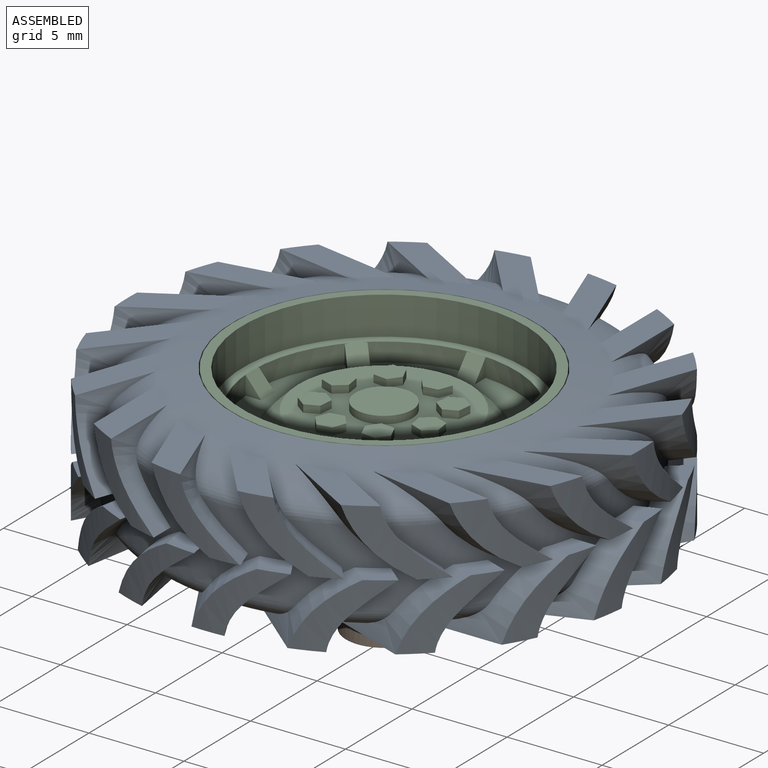
[diagram: assembled view]
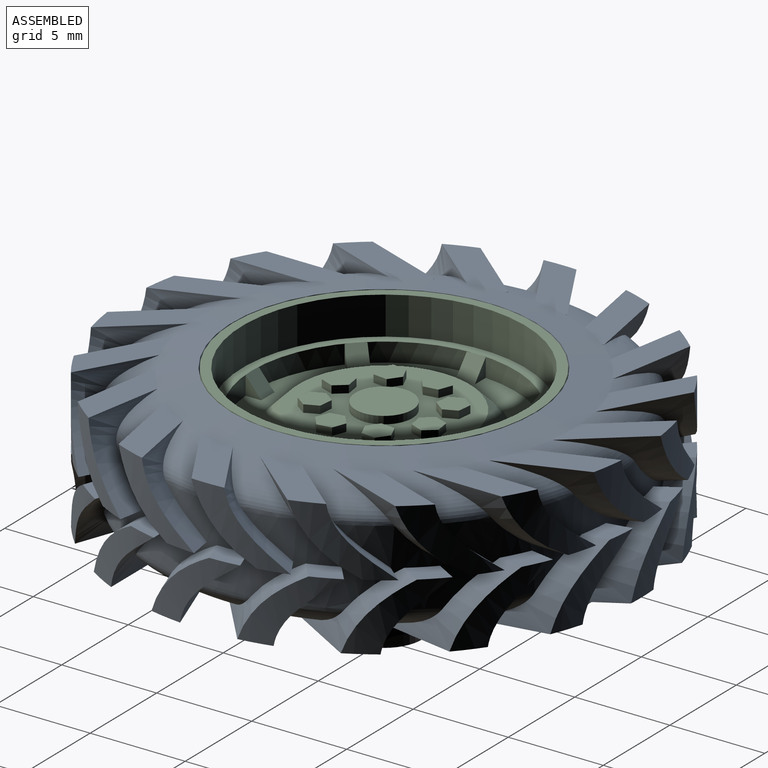
[diagram: assembled view, second angle]
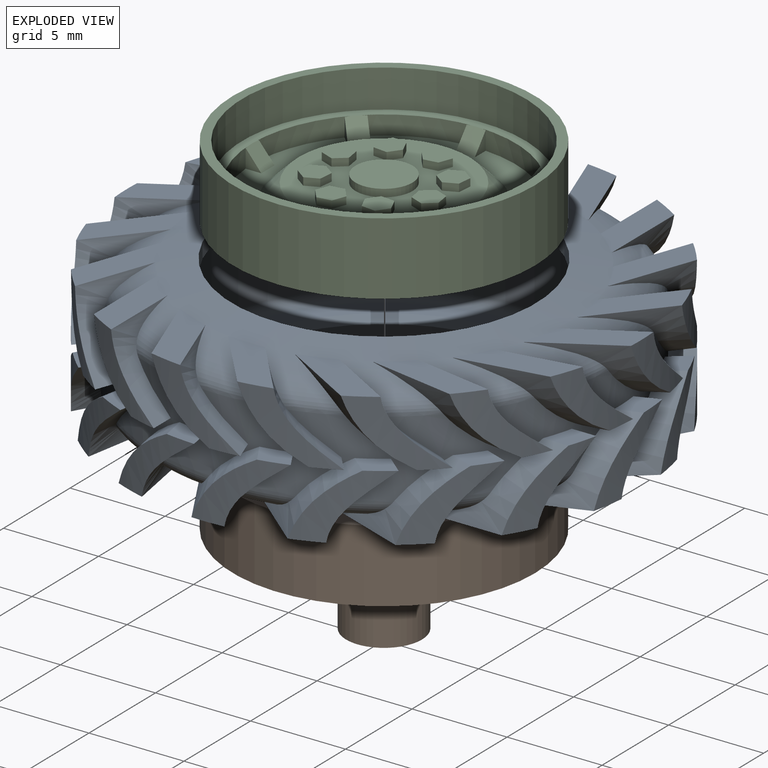
[diagram: exploded view]
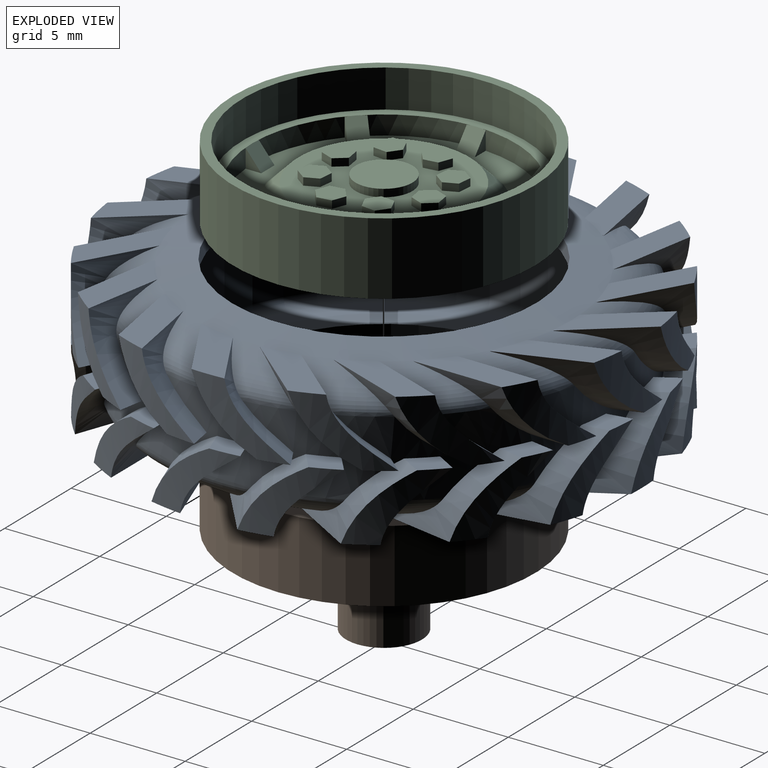
[diagram: exploded view, second angle]
ASSEMBLY  parts=3 mates=3
PART A: 229 faces, bbox 7.7x29.5x29.5 mm
  f0: revolved ~17.43x17.43mm, area 40.3mm2, adj f6,f224
  f1: plane 2.3x1.7mm, normal (1,0,0), area 2mm2, adj f3,f8,f9,f10
  f2: revolved ~24.41x24.41mm, area 221.4mm2, adj f3,f5,f6,f7,f8,f9,f12,f13
  f3: cylinder r=12.25mm len=24.5mm, axis (1,0,0), area 181.6mm2, adj f1,f2,f4,f8,f9,f11,f14,f15
  f4: cylinder r=12.25mm len=0.8mm, axis (1,0,0), area 0.3mm2, adj f3,f25,f191
  f5: plane 5.16x3.32mm, normal (-1,0,0), area 6.7mm2, adj f2,f7,f8,f9,f10
  f6: cylinder r=8mm len=16mm, axis (1,0,0), area 40.2mm2, adj f0,f2
  f7: plane 0.07x0.06mm, normal (0,-0.64,-0.77), area 0mm2, adj f2,f5,f9
  f8: extruded ~5.91x5.63mm, area 7.6mm2, adj f1,f2,f3,f5,f10
  f9: extruded ~6.55x6.17mm, area 8.2mm2, adj f1,f2,f3,f5,f7,f10
  f10: cylinder r=13.5mm len=4.29mm, axis (-1,0,0), area 6mm2, adj f1,f5,f8,f9
  f11: plane 2.01x1.32mm, normal (1,0,0), area 2mm2, adj f3,f14,f15,f16
  f12: plane 4.66x3.28mm, normal (-1,0,0), area 6.7mm2, adj f2,f13,f14,f15,f16
  f13: plane 0.09x0.03mm, normal (0,0.34,-0.94), area 0mm2, adj f2,f12,f15
  f14: extruded ~5.93x4.57mm, area 7.6mm2, adj f2,f3,f11,f12,f16
  f15: extruded ~6.71x4.85mm, area 8.2mm2, adj f2,f3,f11,f12,f13,f16
  f16: cylinder r=13.5mm len=4.82mm, axis (-1,0,0), area 6mm2, adj f11,f12,f14,f15
  f17: plane 2.16x1.7mm, normal (1,0,0), area 2mm2, adj f3,f20,f21,f22
  f18: plane 5.65x2.56mm, normal (-1,0,0), area 6.7mm2, adj f2,f19,f20,f21,f22
  f19: plane 0.09x0.03mm, normal (0,-0.34,-0.94), area 0mm2, adj f2,f18,f21
  f20: extruded ~5.93x4.57mm, area 7.6mm2, adj f2,f3,f17,f18,f22
  f21: extruded ~6.71x4.85mm, area 8.2mm2, adj f2,f3,f17,f18,f19,f22
  f22: cylinder r=13.5mm len=3.55mm, axis (-1,0,0), area 6mm2, adj f17,f18,f20,f21
  f23: plane 2.27x1.63mm, normal (-1,0,0), area 2mm2, adj f3,f29,f30,f31
  f24: revolved ~17.43x17.43mm, area 40.3mm2, adj f27,f225
  f25: revolved ~24.41x24.41mm, area 221.4mm2, adj f3,f4,f26,f27,f28,f29,f30,f33
  f26: plane 4.67x3.61mm, normal (1,0,0), area 6.7mm2, adj f25,f28,f29,f30,f31
  f27: cylinder r=8mm len=16mm, axis (-1,0,0), area 40.2mm2, adj f24,f25
  f28: plane 0.07x0.06mm, normal (0,0.77,0.64), area 0mm2, adj f25,f26,f30
  f29: extruded ~5.91x5.63mm, area 7.6mm2, adj f3,f23,f25,f26,f31
  f30: extruded ~6.55x6.17mm, area 8.2mm2, adj f3,f23,f25,f26,f28,f31
  f31: cylinder r=13.5mm len=4.61mm, axis (-1,0,0), area 6mm2, adj f23,f26,f29,f30
  f32: plane 2.01x1.32mm, normal (-1,0,0), area 2mm2, adj f3,f35,f36,f37
  f33: plane 4.66x3.28mm, normal (1,0,0), area 6.7mm2, adj f25,f34,f35,f36,f37
  f34: plane 0.09x0.03mm, normal (0,0.94,0.34), area 0mm2, adj f25,f33,f36
  f35: extruded ~5.93x4.57mm, area 7.6mm2, adj f3,f25,f32,f33,f37
  f36: extruded ~6.71x4.85mm, area 8.2mm2, adj f3,f25,f32,f33,f34,f37
  f37: cylinder r=13.5mm len=4.82mm, axis (-1,0,0), area 6mm2, adj f32,f33,f35,f36
  f38: plane 2.01x1.32mm, normal (-1,0,0), area 2mm2, adj f3,f41,f42,f43
  f39: plane 4.66x3.28mm, normal (1,0,0), area 6.7mm2, adj f25,f40,f41,f42,f43
  f40: plane 0.09x0.03mm, normal (0,-0.94,-0.34), area 0mm2, adj f25,f39,f42
  f41: extruded ~5.93x4.57mm, area 7.6mm2, adj f3,f25,f38,f39,f43
  f42: extruded ~6.71x4.85mm, area 8.2mm2, adj f3,f25,f38,f39,f40,f43
  f43: cylinder r=13.5mm len=4.82mm, axis (-1,0,0), area 6mm2, adj f38,f39,f41,f42
  f44: plane 2.17x1.5mm, normal (-1,0,0), area 2mm2, adj f3,f47,f48,f49
  f45: plane 4.08x4.03mm, normal (1,0,0), area 6.7mm2, adj f25,f46,f47,f48,f49
  f46: plane 0.08x0.05mm, normal (0,0.5,-0.87), area 0mm2, adj f25,f45,f48
  f47: extruded ~6.01x5.18mm, area 7.6mm2, adj f3,f25,f44,f45,f49
  f48: extruded ~6.73x5.6mm, area 8.2mm2, adj f3,f25,f44,f45,f46,f49
  f49: cylinder r=13.5mm len=4.79mm, axis (-1,0,0), area 6mm2, adj f44,f45,f47,f48
  f50: plane 1.75x1.5mm, normal (1,0,0), area 2mm2, adj f3,f53,f54,f55
  f51: plane 5.47x1.5mm, normal (-1,0,0), area 6.7mm2, adj f2,f52,f53,f54,f55
  f52: plane 0.1x0.02mm, normal (0,0,1), area 0mm2, adj f2,f51,f54
  f53: extruded ~5.23x3.53mm, area 7.6mm2, adj f2,f3,f50,f51,f55
  f54: extruded ~6.07x3.53mm, area 8.2mm2, adj f2,f3,f50,f51,f52,f55
  f55: cylinder r=13.5mm len=4.46mm, axis (-1,0,0), area 6mm2, adj f50,f51,f53,f54
  f56: plane 2.27x1.63mm, normal (1,0,0), area 2mm2, adj f3,f59,f60,f61
  f57: plane 4.67x3.61mm, normal (-1,0,0), area 6.7mm2, adj f2,f58,f59,f60,f61
  f58: plane 0.07x0.06mm, normal (0,-0.64,0.77), area 0mm2, adj f2,f57,f60
  f59: extruded ~5.91x5.63mm, area 7.6mm2, adj f2,f3,f56,f57,f61
  f60: extruded ~6.55x6.17mm, area 8.2mm2, adj f2,f3,f56,f57,f58,f61
  f61: cylinder r=13.5mm len=4.61mm, axis (-1,0,0), area 6mm2, adj f56,f57,f59,f60
  f62: plane 2.3x1.7mm, normal (1,0,0), area 2mm2, adj f3,f65,f66,f67
  f63: plane 5.16x3.32mm, normal (-1,0,0), area 6.7mm2, adj f2,f64,f65,f66,f67
  f64: plane 0.07x0.06mm, normal (0,0.64,0.77), area 0mm2, adj f2,f63,f66
  f65: extruded ~5.91x5.63mm, area 7.6mm2, adj f2,f3,f62,f63,f67
  f66: extruded ~6.55x6.17mm, area 8.2mm2, adj f2,f3,f62,f63,f64,f67
  f67: cylinder r=13.5mm len=4.29mm, axis (-1,0,0), area 6mm2, adj f62,f63,f65,f66
  f68: plane 2.01x1.32mm, normal (1,0,0), area 2mm2, adj f3,f71,f72,f73
  f69: plane 4.66x3.28mm, normal (-1,0,0), area 6.7mm2, adj f2,f70,f71,f72,f73
  f70: plane 0.09x0.03mm, normal (0,-0.34,0.94), area 0mm2, adj f2,f69,f72
  f71: extruded ~5.93x4.57mm, area 7.6mm2, adj f2,f3,f68,f69,f73
  f72: extruded ~6.71x4.85mm, area 8.2mm2, adj f2,f3,f68,f69,f70,f73
  f73: cylinder r=13.5mm len=4.82mm, axis (-1,0,0), area 6mm2, adj f68,f69,f71,f72
  f74: plane 1.98x1.63mm, normal (-1,0,0), area 2mm2, adj f3,f77,f78,f79
  f75: plane 5.65x2.06mm, normal (1,0,0), area 6.7mm2, adj f25,f76,f77,f78,f79
  f76: plane 0.09x0.02mm, normal (0,0.17,0.98), area 0mm2, adj f25,f75,f78
  f77: extruded ~5.67x3.82mm, area 7.6mm2, adj f3,f25,f74,f75,f79
  f78: extruded ~6.49x3.97mm, area 8.2mm2, adj f3,f25,f74,f75,f76,f79
  f79: cylinder r=13.5mm len=4.07mm, axis (-1,0,0), area 6mm2, adj f74,f75,f77,f78
  f80: plane 1.98x1.63mm, normal (-1,0,0), area 2mm2, adj f3,f83,f84,f85
  f81: plane 5.65x2.06mm, normal (1,0,0), area 6.7mm2, adj f25,f82,f83,f84,f85
  f82: plane 0.09x0.02mm, normal (0,-0.17,-0.98), area 0mm2, adj f25,f81,f84
  f83: extruded ~5.67x3.82mm, area 7.6mm2, adj f3,f25,f80,f81,f85
  f84: extruded ~6.49x3.97mm, area 8.2mm2, adj f3,f25,f80,f81,f82,f85
  f85: cylinder r=13.5mm len=4.07mm, axis (-1,0,0), area 6mm2, adj f80,f81,f83,f84
  f86: plane 1.75x1.5mm, normal (-1,0,0), area 2mm2, adj f3,f89,f90,f91
  f87: plane 5.47x1.5mm, normal (1,0,0), area 6.7mm2, adj f25,f88,f89,f90,f91
  f88: plane 0.1x0.02mm, normal (0,1,0), area 0mm2, adj f25,f87,f90
  f89: extruded ~5.23x3.53mm, area 7.6mm2, adj f3,f25,f86,f87,f91
  f90: extruded ~6.07x3.53mm, area 8.2mm2, adj f3,f25,f86,f87,f88,f91
  f91: cylinder r=13.5mm len=4.46mm, axis (-1,0,0), area 6mm2, adj f86,f87,f89,f90
  f92: plane 2.3x1.7mm, normal (-1,0,0), area 2mm2, adj f3,f95,f96,f97
  f93: plane 5.16x3.32mm, normal (1,0,0), area 6.7mm2, adj f25,f94,f95,f96,f97
  f94: plane 0.07x0.06mm, normal (0,0.77,-0.64), area 0mm2, adj f25,f93,f96
  f95: extruded ~5.91x5.63mm, area 7.6mm2, adj f3,f25,f92,f93,f97
  f96: extruded ~6.55x6.17mm, area 8.2mm2, adj f3,f25,f92,f93,f94,f97
  f97: cylinder r=13.5mm len=4.29mm, axis (-1,0,0), area 6mm2, adj f92,f93,f95,f96
  f98: plane 1.78x1.46mm, normal (1,0,0), area 2mm2, adj f3,f101,f102,f103
  f99: plane 5.14x2.43mm, normal (-1,0,0), area 6.7mm2, adj f2,f100,f101,f102,f103
  f100: plane 0.09x0.02mm, normal (0,0.98,0.17), area 0mm2, adj f2,f99,f102
  f101: extruded ~5.67x3.82mm, area 7.6mm2, adj f2,f3,f98,f99,f103
  f102: extruded ~6.49x3.97mm, area 8.2mm2, adj f2,f3,f98,f99,f100,f103
  f103: cylinder r=13.5mm len=4.71mm, axis (-1,0,0), area 6mm2, adj f98,f99,f101,f102
  f104: plane 2.17x1.5mm, normal (1,0,0), area 2mm2, adj f3,f107,f108,f109
  f105: plane 4.08x4.03mm, normal (-1,0,0), area 6.7mm2, adj f2,f106,f107,f108,f109
  f106: plane 0.08x0.05mm, normal (0,0.87,0.5), area 0mm2, adj f2,f105,f108
  f107: extruded ~6.01x5.18mm, area 7.6mm2, adj f2,f3,f104,f105,f109
  f108: extruded ~6.73x5.6mm, area 8.2mm2, adj f2,f3,f104,f105,f106,f109
  f109: cylinder r=13.5mm len=4.79mm, axis (-1,0,0), area 6mm2, adj f104,f105,f107,f108
  f110: plane 2.27x1.63mm, normal (1,0,0), area 2mm2, adj f3,f113,f114,f115
  f111: plane 4.67x3.61mm, normal (-1,0,0), area 6.7mm2, adj f2,f112,f113,f114,f115
  f112: plane 0.07x0.06mm, normal (0,0.64,-0.77), area 0mm2, adj f2,f111,f114
  f113: extruded ~5.91x5.63mm, area 7.6mm2, adj f2,f3,f110,f111,f115
  f114: extruded ~6.55x6.17mm, area 8.2mm2, adj f2,f3,f110,f111,f112,f115
  f115: cylinder r=13.5mm len=4.61mm, axis (-1,0,0), area 6mm2, adj f110,f111,f113,f114
  f116: plane 2.27x1.73mm, normal (1,0,0), area 2mm2, adj f3,f119,f120,f121
  f117: plane 5.49x2.99mm, normal (-1,0,0), area 6.7mm2, adj f2,f118,f119,f120,f121
  f118: plane 0.08x0.05mm, normal (0,0.87,-0.5), area 0mm2, adj f2,f117,f120
  f119: extruded ~6.01x5.18mm, area 7.6mm2, adj f2,f3,f116,f117,f121
  f120: extruded ~6.73x5.6mm, area 8.2mm2, adj f2,f3,f116,f117,f118,f121
  f121: cylinder r=13.5mm len=3.84mm, axis (-1,0,0), area 6mm2, adj f116,f117,f119,f120
  f122: plane 1.98x1.63mm, normal (1,0,0), area 2mm2, adj f3,f125,f126,f127
  f123: plane 5.65x2.06mm, normal (-1,0,0), area 6.7mm2, adj f2,f124,f125,f126,f127
  f124: plane 0.09x0.02mm, normal (0,0.98,-0.17), area 0mm2, adj f2,f123,f126
  f125: extruded ~5.67x3.82mm, area 7.6mm2, adj f2,f3,f122,f123,f127
  f126: extruded ~6.49x3.97mm, area 8.2mm2, adj f2,f3,f122,f123,f124,f127
  f127: cylinder r=13.5mm len=4.07mm, axis (-1,0,0), area 6mm2, adj f122,f123,f125,f126
  f128: plane 1.75x1.5mm, normal (1,0,0), area 2mm2, adj f3,f131,f132,f133
  f129: plane 5.47x1.5mm, normal (-1,0,0), area 6.7mm2, adj f2,f130,f131,f132,f133
  f130: plane 0.1x0.02mm, normal (0,0,-1), area 0mm2, adj f2,f129,f132
  f131: extruded ~5.23x3.53mm, area 7.6mm2, adj f2,f3,f128,f129,f133
  f132: extruded ~6.07x3.53mm, area 8.2mm2, adj f2,f3,f128,f129,f130,f133
  f133: cylinder r=13.5mm len=4.46mm, axis (-1,0,0), area 6mm2, adj f128,f129,f131,f132
  f134: plane 2.27x1.73mm, normal (-1,0,0), area 2mm2, adj f3,f137,f138,f139
  f135: plane 5.49x2.99mm, normal (1,0,0), area 6.7mm2, adj f25,f136,f137,f138,f139
  f136: plane 0.08x0.05mm, normal (0,0.5,0.87), area 0mm2, adj f25,f135,f138
  f137: extruded ~6.01x5.18mm, area 7.6mm2, adj f3,f25,f134,f135,f139
  f138: extruded ~6.73x5.6mm, area 8.2mm2, adj f3,f25,f134,f135,f136,f139
  f139: cylinder r=13.5mm len=3.84mm, axis (-1,0,0), area 6mm2, adj f134,f135,f137,f138
  f140: plane 2.16x1.7mm, normal (1,0,0), area 2mm2, adj f3,f143,f144,f145
  f141: plane 5.65x2.56mm, normal (-1,0,0), area 6.7mm2, adj f2,f142,f143,f144,f145
  f142: plane 0.09x0.03mm, normal (0,0.34,0.94), area 0mm2, adj f2,f141,f144
  f143: extruded ~5.93x4.57mm, area 7.6mm2, adj f2,f3,f140,f141,f145
  f144: extruded ~6.71x4.85mm, area 8.2mm2, adj f2,f3,f140,f141,f142,f145
  f145: cylinder r=13.5mm len=3.55mm, axis (-1,0,0), area 6mm2, adj f140,f141,f143,f144
  f146: plane 1.78x1.46mm, normal (-1,0,0), area 2mm2, adj f3,f149,f150,f151
  f147: plane 5.14x2.43mm, normal (1,0,0), area 6.7mm2, adj f25,f148,f149,f150,f151
  f148: plane 0.09x0.02mm, normal (0,-0.17,0.98), area 0mm2, adj f25,f147,f150
  f149: extruded ~5.67x3.82mm, area 7.6mm2, adj f3,f25,f146,f147,f151
  f150: extruded ~6.49x3.97mm, area 8.2mm2, adj f3,f25,f146,f147,f148,f151
  f151: cylinder r=13.5mm len=4.71mm, axis (-1,0,0), area 6mm2, adj f146,f147,f149,f150
  f152: plane 1.78x1.46mm, normal (-1,0,0), area 2mm2, adj f3,f155,f156,f157
  f153: plane 5.14x2.43mm, normal (1,0,0), area 6.7mm2, adj f25,f154,f155,f156,f157
  f154: plane 0.09x0.02mm, normal (0,0.17,-0.98), area 0mm2, adj f25,f153,f156
  f155: extruded ~5.67x3.82mm, area 7.6mm2, adj f3,f25,f152,f153,f157
  f156: extruded ~6.49x3.97mm, area 8.2mm2, adj f3,f25,f152,f153,f154,f157
  f157: cylinder r=13.5mm len=4.71mm, axis (-1,0,0), area 6mm2, adj f152,f153,f155,f156
  f158: plane 2.16x1.7mm, normal (-1,0,0), area 2mm2, adj f3,f161,f162,f163
  f159: plane 5.65x2.56mm, normal (1,0,0), area 6.7mm2, adj f25,f160,f161,f162,f163
  f160: plane 0.09x0.03mm, normal (0,0.94,-0.34), area 0mm2, adj f25,f159,f162
  f161: extruded ~5.93x4.57mm, area 7.7mm2, adj f3,f25,f158,f159,f163
  f162: extruded ~6.71x4.85mm, area 8.2mm2, adj f3,f25,f158,f159,f160,f163
  f163: cylinder r=13.5mm len=3.55mm, axis (-1,0,0), area 6mm2, adj f158,f159,f161,f162
  f164: plane 2.27x1.63mm, normal (-1,0,0), area 2mm2, adj f3,f167,f168,f169
  f165: plane 4.67x3.61mm, normal (1,0,0), area 6.7mm2, adj f25,f166,f167,f168,f169
  f166: plane 0.07x0.06mm, normal (0,-0.77,-0.64), area 0mm2, adj f25,f165,f168
  f167: extruded ~5.91x5.63mm, area 7.6mm2, adj f3,f25,f164,f165,f169
  f168: extruded ~6.55x6.17mm, area 8.2mm2, adj f3,f25,f164,f165,f166,f169
  f169: cylinder r=13.5mm len=4.61mm, axis (-1,0,0), area 6mm2, adj f164,f165,f167,f168
  f170: plane 2.17x1.5mm, normal (1,0,0), area 2mm2, adj f3,f173,f174,f175
  f171: plane 4.08x4.03mm, normal (-1,0,0), area 6.7mm2, adj f2,f172,f173,f174,f175
  f172: plane 0.08x0.05mm, normal (0,-0.87,-0.5), area 0mm2, adj f2,f171,f174
  f173: extruded ~6.01x5.18mm, area 7.6mm2, adj f2,f3,f170,f171,f175
  f174: extruded ~6.73x5.6mm, area 8.2mm2, adj f2,f3,f170,f171,f172,f175
  f175: cylinder r=13.5mm len=4.79mm, axis (-1,0,0), area 6mm2, adj f170,f171,f173,f174
  f176: plane 2.17x1.5mm, normal (-1,0,0), area 2mm2, adj f3,f179,f180,f181
  f177: plane 4.08x4.03mm, normal (1,0,0), area 6.7mm2, adj f25,f178,f179,f180,f181
  f178: plane 0.08x0.05mm, normal (0,-0.5,0.87), area 0mm2, adj f25,f177,f180
  f179: extruded ~6.01x5.18mm, area 7.6mm2, adj f3,f25,f176,f177,f181
  f180: extruded ~6.73x5.6mm, area 8.2mm2, adj f3,f25,f176,f177,f178,f181
  f181: cylinder r=13.5mm len=4.79mm, axis (-1,0,0), area 6mm2, adj f176,f177,f179,f180
  f182: plane 1.78x1.46mm, normal (1,0,0), area 2mm2, adj f3,f185,f186,f187
  f183: plane 5.14x2.43mm, normal (-1,0,0), area 6.7mm2, adj f2,f184,f185,f186,f187
  f184: plane 0.09x0.02mm, normal (0,-0.98,-0.17), area 0mm2, adj f2,f183,f186
  f185: extruded ~5.67x3.82mm, area 7.6mm2, adj f2,f3,f182,f183,f187
  f186: extruded ~6.49x3.97mm, area 8.2mm2, adj f2,f3,f182,f183,f184,f187
  f187: cylinder r=13.5mm len=4.71mm, axis (-1,0,0), area 6mm2, adj f182,f183,f185,f186
  f188: plane 2.16x1.7mm, normal (-1,0,0), area 2mm2, adj f3,f191,f192,f193
  f189: plane 5.65x2.56mm, normal (1,0,0), area 6.7mm2, adj f25,f190,f191,f192,f193
  f190: plane 0.09x0.03mm, normal (0,-0.94,0.34), area 0mm2, adj f25,f189,f192
  f191: extruded ~5.93x4.57mm, area 7.6mm2, adj f3,f4,f25,f188,f189,f193
  f192: extruded ~6.71x4.85mm, area 8.2mm2, adj f3,f25,f188,f189,f190,f193
  f193: cylinder r=13.5mm len=3.55mm, axis (-1,0,0), area 6mm2, adj f188,f189,f191,f192
  f194: plane 2.27x1.73mm, normal (-1,0,0), area 2mm2, adj f3,f197,f198,f199
  f195: plane 5.49x2.99mm, normal (1,0,0), area 6.7mm2, adj f25,f196,f197,f198,f199
  f196: plane 0.08x0.05mm, normal (0,-0.5,-0.87), area 0mm2, adj f25,f195,f198
  f197: extruded ~6.01x5.18mm, area 7.6mm2, adj f3,f25,f194,f195,f199
  f198: extruded ~6.73x5.6mm, area 8.2mm2, adj f3,f25,f194,f195,f196,f199
  f199: cylinder r=13.5mm len=3.84mm, axis (-1,0,0), area 6mm2, adj f194,f195,f197,f198
  f200: plane 2.3x1.7mm, normal (-1,0,0), area 2mm2, adj f3,f203,f204,f205
  f201: plane 5.16x3.32mm, normal (1,0,0), area 6.7mm2, adj f25,f202,f203,f204,f205
  f202: plane 0.07x0.06mm, normal (0,-0.77,0.64), area 0mm2, adj f25,f201,f204
  f203: extruded ~5.91x5.63mm, area 7.6mm2, adj f3,f25,f200,f201,f205
  f204: extruded ~6.55x6.17mm, area 8.2mm2, adj f3,f25,f200,f201,f202,f205
  f205: cylinder r=13.5mm len=4.29mm, axis (-1,0,0), area 6mm2, adj f200,f201,f203,f204
  f206: plane 2.27x1.73mm, normal (1,0,0), area 2mm2, adj f3,f209,f210,f211
  f207: plane 5.49x2.99mm, normal (-1,0,0), area 6.7mm2, adj f2,f208,f209,f210,f211
  f208: plane 0.08x0.05mm, normal (0,-0.87,0.5), area 0mm2, adj f2,f207,f210
  f209: extruded ~6.01x5.18mm, area 7.6mm2, adj f2,f3,f206,f207,f211
  f210: extruded ~6.73x5.6mm, area 8.2mm2, adj f2,f3,f206,f207,f208,f211
  f211: cylinder r=13.5mm len=3.84mm, axis (-1,0,0), area 6mm2, adj f206,f207,f209,f210
  f212: plane 1.75x1.5mm, normal (-1,0,0), area 2mm2, adj f3,f215,f216,f217
  f213: plane 5.47x1.5mm, normal (1,0,0), area 6.7mm2, adj f25,f214,f215,f216,f217
  f214: plane 0.1x0.02mm, normal (0,-1,0), area 0mm2, adj f25,f213,f216
  f215: extruded ~5.23x3.53mm, area 7.6mm2, adj f3,f25,f212,f213,f217
  f216: extruded ~6.07x3.53mm, area 8.2mm2, adj f3,f25,f212,f213,f214,f217
  f217: cylinder r=13.5mm len=4.46mm, axis (-1,0,0), area 6mm2, adj f212,f213,f215,f216
  f218: plane 1.98x1.63mm, normal (1,0,0), area 2mm2, adj f3,f221,f222,f223
  f219: plane 5.65x2.06mm, normal (-1,0,0), area 6.7mm2, adj f2,f220,f221,f222,f223
  f220: plane 0.09x0.02mm, normal (0,-0.98,0.17), area 0mm2, adj f2,f219,f222
  f221: extruded ~5.67x3.82mm, area 7.7mm2, adj f2,f3,f218,f219,f223
  f222: extruded ~6.49x3.97mm, area 8.2mm2, adj f2,f3,f218,f219,f220,f223
  f223: cylinder r=13.5mm len=4.07mm, axis (-1,0,0), area 6mm2, adj f218,f219,f221,f222
  f224: plane 19.5x19.5mm, normal (1,0,0), area 58.2mm2, adj f0,f228
  f225: plane 19.5x19.5mm, normal (-1,0,0), area 58.2mm2, adj f24,f227
  f226: cylinder r=10.25mm len=20.5mm, axis (1,0,0), area 304mm2, adj f227,f228
  f227: torus R=9.75mm, axis (1,0,0), area 49.7mm2, adj f225,f226
  f228: torus R=9.75mm, axis (1,0,0), area 49.7mm2, adj f224,f226
PART B: 8 faces, bbox 15.9x15.9x8.6 mm
  f0: cylinder r=7.95mm len=15.9mm, axis (0,0,-1), area 191.1mm2, adj f1,f7
  f1: plane 15.9x15.9mm, normal (0,0,-1), area 186mm2, adj f0,f3
  f2: plane 4x4mm, normal (0,0,-1), area 9.3mm2, adj f3,f4
  f3: cylinder r=2mm len=4.75mm, axis (0,0,1), area 59.7mm2, adj f1,f2
  f4: torus R=1.03mm, axis (0,0,-1), area 2.5mm2, adj f2,f5
  f5: cylinder r=0.72mm len=4.45mm, axis (0,0,-1), area 20.3mm2, adj f4,f6
  f6: plane 1.45x1.45mm, normal (0,0,-1), area 1.7mm2, adj f5
  f7: plane 15.9x15.9mm, normal (0,0,1), area 198.6mm2, adj f0
PART C: 98 faces, bbox 15.9x15.9x3.8 mm
  f0: plane 9x9mm, normal (0,0,1), area 44.8mm2, adj f26,f39,f41,f42,f43,f44,f45,f46
  f1: plane 13.86x13.86mm, normal (0,0,1), area 50mm2, adj f2,f3,f4,f5,f6,f7,f8,f13
  f2: cylinder r=6.95mm len=4.91mm, axis (0,0,1), area 4.5mm2, adj f1,f12,f20,f21,f33,f35
  f3: cylinder r=6.95mm len=4.91mm, axis (0,0,1), area 4.5mm2, adj f1,f12,f20,f22,f30,f32
  f4: cylinder r=6.95mm len=4.91mm, axis (0,0,1), area 4.5mm2, adj f1,f12,f17,f19,f33,f34
  f5: cylinder r=6.95mm len=4.91mm, axis (0,0,1), area 4.5mm2, adj f1,f12,f23,f25,f30,f31
  f6: cylinder r=6.95mm len=4.91mm, axis (0,0,1), area 4.5mm2, adj f1,f12,f17,f18,f36,f38
  f7: cylinder r=6.95mm len=4.91mm, axis (0,0,1), area 4.5mm2, adj f1,f12,f23,f24,f27,f29
  f8: cylinder r=6.95mm len=4.91mm, axis (0,0,1), area 4.5mm2, adj f1,f12,f14,f16,f37,f38
  f9: cylinder r=7.95mm len=15.9mm, axis (0,0,-1), area 191.1mm2, adj f10,f97
  f10: plane 15.9x15.9mm, normal (0,0,1), area 24.2mm2, adj f9,f11
  f11: cylinder r=7.45mm len=14.9mm, axis (0,0,1), area 93.6mm2, adj f10,f12
  f12: plane 14.9x14.9mm, normal (0,0,1), area 22.6mm2, adj f2,f3,f4,f5,f6,f7,f8,f11
  f13: cylinder r=6.95mm len=4.91mm, axis (0,0,1), area 4.5mm2, adj f1,f12,f15,f16,f27,f28
  f14: plane 0.98x0.82mm, normal (0,1,0), area 0.4mm2, adj f1,f8,f16
  f15: plane 0.98x0.82mm, normal (0,-1,0), area 0.4mm2, adj f1,f13,f16
  f16: plane 1.01x1.01mm, normal (-0.77,0,0.64), area 1.3mm2, adj f1,f8,f13,f14,f15
  f17: plane 1.01x1.01mm, normal (0,-0.77,0.64), area 1.3mm2, adj f1,f4,f6,f18,f19
  f18: plane 0.98x0.82mm, normal (1,0,0), area 0.4mm2, adj f1,f6,f17
  f19: plane 0.98x0.82mm, normal (-1,0,0), area 0.4mm2, adj f1,f4,f17
  f20: plane 1.01x1.01mm, normal (0.77,0,0.64), area 1.3mm2, adj f1,f2,f3,f21,f22
  f21: plane 0.98x0.82mm, normal (0,1,0), area 0.4mm2, adj f1,f2,f20
  f22: plane 0.98x0.82mm, normal (0,-1,0), area 0.4mm2, adj f1,f3,f20
  f23: plane 1.01x1.01mm, normal (0,0.77,0.64), area 1.3mm2, adj f1,f5,f7,f24,f25
  f24: plane 0.98x0.82mm, normal (1,0,0), area 0.4mm2, adj f1,f7,f23
  f25: plane 0.98x0.82mm, normal (-1,0,0), area 0.4mm2, adj f1,f5,f23
  f26: cone r=5.5mm half-angle=45deg, axis (0,0,-1), area 44.4mm2, adj f0,f1
  f27: plane 1.3x1.3mm, normal (-0.54,0.54,0.64), area 1.3mm2, adj f1,f7,f13,f28,f29
  f28: plane 0.98x0.58mm, normal (0.71,0.71,0), area 0.4mm2, adj f1,f13,f27
  f29: plane 0.98x0.58mm, normal (-0.71,-0.71,0), area 0.4mm2, adj f1,f7,f27
  f30: plane 1.3x1.3mm, normal (0.54,0.54,0.64), area 1.3mm2, adj f1,f3,f5,f31,f32
  f31: plane 0.98x0.58mm, normal (0.71,-0.71,0), area 0.4mm2, adj f1,f5,f30
  f32: plane 0.98x0.58mm, normal (-0.71,0.71,0), area 0.4mm2, adj f1,f3,f30
  f33: plane 1.3x1.3mm, normal (0.54,-0.54,0.64), area 1.3mm2, adj f1,f2,f4,f34,f35
  f34: plane 0.98x0.58mm, normal (0.71,0.71,0), area 0.4mm2, adj f1,f4,f33
  f35: plane 0.98x0.58mm, normal (-0.71,-0.71,0), area 0.4mm2, adj f1,f2,f33
  f36: plane 0.98x0.58mm, normal (-0.71,0.71,0), area 0.4mm2, adj f1,f6,f38
  f37: plane 0.98x0.58mm, normal (0.71,-0.71,0), area 0.4mm2, adj f1,f8,f38
  f38: plane 1.3x1.3mm, normal (-0.54,-0.54,0.64), area 1.3mm2, adj f1,f6,f8,f36,f37
  f39: cylinder r=1.5mm len=3mm, axis (0,0,-1), area 3.8mm2, adj f0,f40
  f40: plane 3x3mm, normal (0,0,1), area 7.1mm2, adj f39
  f41: plane 0.61x0.44mm, normal (0.81,-0.59,0), area 0.3mm2, adj f0,f42,f46,f47
  f42: plane 0.69x0.4mm, normal (0.91,0.4,0), area 0.3mm2, adj f0,f41,f43,f47
  f43: plane 0.75x0.4mm, normal (0.11,0.99,0), area 0.3mm2, adj f0,f42,f44,f47
  f44: plane 0.61x0.44mm, normal (-0.81,0.59,0), area 0.3mm2, adj f0,f43,f45,f47
  f45: plane 0.69x0.4mm, normal (-0.91,-0.4,0), area 0.3mm2, adj f0,f44,f46,f47
  f46: plane 0.75x0.4mm, normal (-0.11,-0.99,0), area 0.3mm2, adj f0,f41,f45,f47
  f47: plane 1.49x1.37mm, normal (0,0,1), area 1.5mm2, adj f41,f42,f43,f44,f45,f46
  f48: plane 1.49x1.37mm, normal (0,0,1), area 1.5mm2, adj f49,f50,f51,f52,f53,f54
  f49: plane 0.61x0.44mm, normal (-0.81,0.59,0), area 0.3mm2, adj f0,f48,f50,f54
  f50: plane 0.69x0.4mm, normal (-0.91,-0.4,0), area 0.3mm2, adj f0,f48,f49,f51
  f51: plane 0.75x0.4mm, normal (-0.11,-0.99,0), area 0.3mm2, adj f0,f48,f50,f52
  f52: plane 0.61x0.44mm, normal (0.81,-0.59,0), area 0.3mm2, adj f0,f48,f51,f53
  f53: plane 0.69x0.4mm, normal (0.91,0.4,0), area 0.3mm2, adj f0,f48,f52,f54
  f54: plane 0.75x0.4mm, normal (0.11,0.99,0), area 0.3mm2, adj f0,f48,f49,f53
  f55: plane 1.49x1.37mm, normal (0,0,1), area 1.5mm2, adj f56,f57,f58,f59,f60,f61
  f56: plane 0.75x0.4mm, normal (0.99,-0.11,0), area 0.3mm2, adj f0,f55,f57,f61
  f57: plane 0.69x0.4mm, normal (0.4,-0.91,0), area 0.3mm2, adj f0,f55,f56,f58
  f58: plane 0.61x0.44mm, normal (-0.59,-0.81,0), area 0.3mm2, adj f0,f55,f57,f59
  f59: plane 0.75x0.4mm, normal (-0.99,0.11,0), area 0.3mm2, adj f0,f55,f58,f60
  f60: plane 0.69x0.4mm, normal (-0.4,0.91,0), area 0.3mm2, adj f0,f55,f59,f61
  f61: plane 0.61x0.44mm, normal (0.59,0.81,0), area 0.3mm2, adj f0,f55,f56,f60
  f62: plane 1.49x1.37mm, normal (0,0,1), area 1.5mm2, adj f63,f64,f65,f66,f67,f68
  f63: plane 0.75x0.4mm, normal (-0.99,0.11,0), area 0.3mm2, adj f0,f62,f64,f68
  f64: plane 0.69x0.4mm, normal (-0.4,0.91,0), area 0.3mm2, adj f0,f62,f63,f65
  f65: plane 0.61x0.44mm, normal (0.59,0.81,0), area 0.3mm2, adj f0,f62,f64,f66
  f66: plane 0.75x0.4mm, normal (0.99,-0.11,0), area 0.3mm2, adj f0,f62,f65,f67
  f67: plane 0.69x0.4mm, normal (0.4,-0.91,0), area 0.3mm2, adj f0,f62,f66,f68
  f68: plane 0.61x0.44mm, normal (-0.59,-0.81,0), area 0.3mm2, adj f0,f62,f63,f67
  f69: plane 1.48x1.4mm, normal (0,0,1), area 1.5mm2, adj f70,f71,f72,f73,f74,f75
  f70: plane 0.58x0.47mm, normal (-0.78,-0.63,0), area 0.3mm2, adj f0,f69,f71,f75
  f71: plane 0.7x0.4mm, normal (-0.93,0.36,0), area 0.3mm2, adj f0,f69,f70,f72
  f72: plane 0.74x0.4mm, normal (-0.15,0.99,0), area 0.3mm2, adj f0,f69,f71,f73
  f73: plane 0.58x0.47mm, normal (0.78,0.63,0), area 0.3mm2, adj f0,f69,f72,f74
  f74: plane 0.7x0.4mm, normal (0.93,-0.36,0), area 0.3mm2, adj f0,f69,f73,f75
  f75: plane 0.74x0.4mm, normal (0.15,-0.99,0), area 0.3mm2, adj f0,f69,f70,f74
  f76: plane 1.48x1.4mm, normal (0,0,1), area 1.5mm2, adj f77,f78,f79,f80,f81,f82
  f77: plane 0.74x0.4mm, normal (-0.99,-0.15,0), area 0.3mm2, adj f0,f76,f78,f82
  f78: plane 0.7x0.4mm, normal (-0.36,-0.93,0), area 0.3mm2, adj f0,f76,f77,f79
  f79: plane 0.58x0.47mm, normal (0.63,-0.78,0), area 0.3mm2, adj f0,f76,f78,f80
  f80: plane 0.74x0.4mm, normal (0.99,0.15,0), area 0.3mm2, adj f0,f76,f79,f81
  f81: plane 0.7x0.4mm, normal (0.36,0.93,0), area 0.3mm2, adj f0,f76,f80,f82
  f82: plane 0.58x0.47mm, normal (-0.63,0.78,0), area 0.3mm2, adj f0,f76,f77,f81
  f83: plane 1.48x1.4mm, normal (0,0,1), area 1.5mm2, adj f84,f85,f86,f87,f88,f89
  f84: plane 0.74x0.4mm, normal (0.99,0.15,0), area 0.3mm2, adj f0,f83,f85,f89
  f85: plane 0.7x0.4mm, normal (0.36,0.93,0), area 0.3mm2, adj f0,f83,f84,f86
  f86: plane 0.58x0.47mm, normal (-0.63,0.78,0), area 0.3mm2, adj f0,f83,f85,f87
  f87: plane 0.74x0.4mm, normal (-0.99,-0.15,0), area 0.3mm2, adj f0,f83,f86,f88
  f88: plane 0.7x0.4mm, normal (-0.36,-0.93,0), area 0.3mm2, adj f0,f83,f87,f89
  f89: plane 0.58x0.47mm, normal (0.63,-0.78,0), area 0.3mm2, adj f0,f83,f84,f88
  f90: plane 1.48x1.4mm, normal (0,0,1), area 1.5mm2, adj f91,f92,f93,f94,f95,f96
  f91: plane 0.58x0.47mm, normal (0.78,0.63,0), area 0.3mm2, adj f0,f90,f92,f96
  f92: plane 0.7x0.4mm, normal (0.93,-0.36,0), area 0.3mm2, adj f0,f90,f91,f93
  f93: plane 0.74x0.4mm, normal (0.15,-0.99,0), area 0.3mm2, adj f0,f90,f92,f94
  f94: plane 0.58x0.47mm, normal (-0.78,-0.63,0), area 0.3mm2, adj f0,f90,f93,f95
  f95: plane 0.7x0.4mm, normal (-0.93,0.36,0), area 0.3mm2, adj f0,f90,f94,f96
  f96: plane 0.74x0.4mm, normal (-0.15,0.99,0), area 0.3mm2, adj f0,f90,f91,f95
  f97: plane 15.9x15.9mm, normal (0,0,-1), area 198.6mm2, adj f9
PLACE A rot(axis=(0,-1,0),90deg) t=(0.03,-0.01,-1.96)mm
PLACE B t=(0.03,-0.01,-5.79)mm
PLACE C t=(0.03,-0.01,-5.79)mm fixed
MATE cylindrical A.f3 <-> B.f0  axis (0,0,-1) through (0.03,-0.01,1.86)mm
MATE cylindrical C.f9 <-> B.f0  axis (0,0,-1) through (0.03,-0.01,-1.96)mm
MATE planar A.f3 <-> B.f0  axis (0,0,-1) through (0.03,-0.01,-5.79)mm
